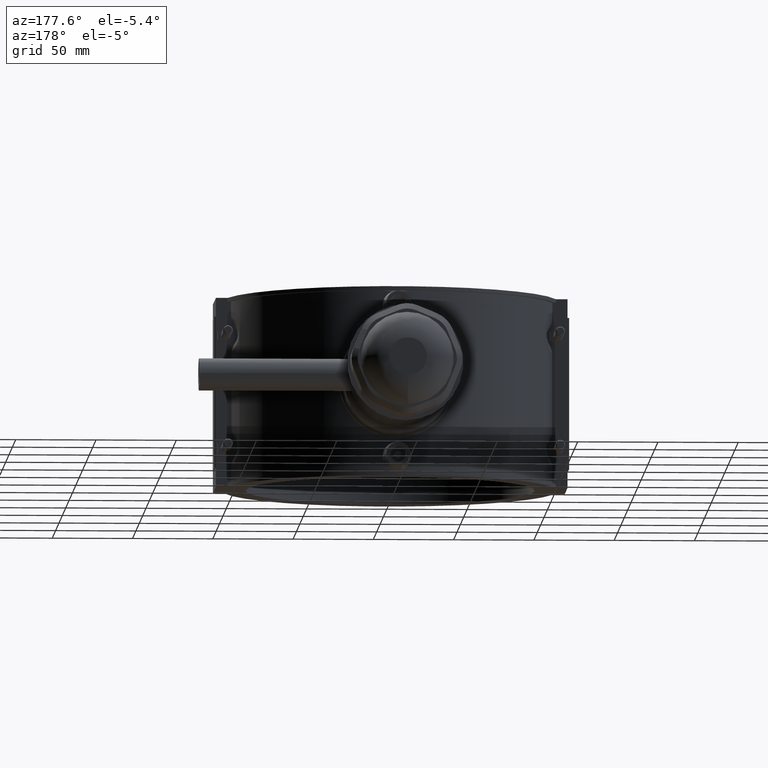
[diagram: clean part render]
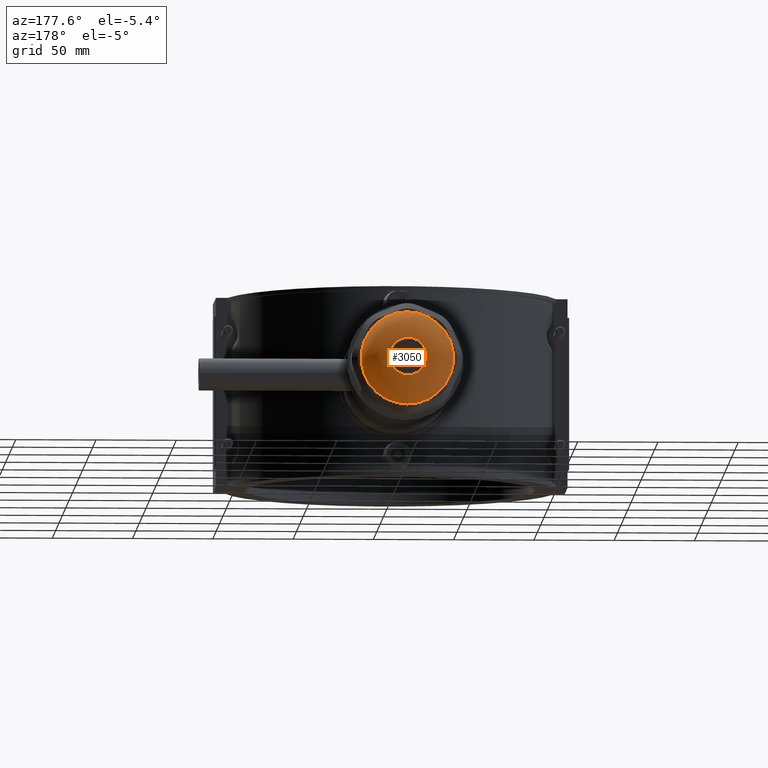
[diagram: same view with one face highlighted and labeled with its STEP entity id]
A machine part, auxiliary view. The second image highlights one B-rep face of the part: STEP entity #3050.
In plain terms, the highlighted face is a freeform B-spline surface patch.
Its self-contained STEP definition (entity closure, byte-faithful):
#24=(
BOUNDED_CURVE()
B_SPLINE_CURVE(2,(#4728,#4729,#4730),.UNSPECIFIED.,.F.,.F.)
B_SPLINE_CURVE_WITH_KNOTS((3,3),(-1.5707963267949,-0.316946561442329),
 .UNSPECIFIED.)
CURVE()
GEOMETRIC_REPRESENTATION_ITEM()
RATIONAL_B_SPLINE_CURVE((1.,0.809835374217087,1.))
REPRESENTATION_ITEM('')
);
#25=(
BOUNDED_SURFACE()
B_SPLINE_SURFACE(2,2,((#4699,#4700,#4701,#4702,#4703,#4704,#4705,#4706,
#4707),(#4708,#4709,#4710,#4711,#4712,#4713,#4714,#4715,#4716),(#4717,#4718,
#4719,#4720,#4721,#4722,#4723,#4724,#4725)),.UNSPECIFIED.,.F.,.T.,.F.)
B_SPLINE_SURFACE_WITH_KNOTS((3,3),(3,2,2,2,3),(0.316946561442329,1.5707963267949),
(-3.14159265358979,-1.5707963267949,0.,1.5707963267949,3.14159265358979),
 .UNSPECIFIED.)
GEOMETRIC_REPRESENTATION_ITEM()
RATIONAL_B_SPLINE_SURFACE(((1.,0.707106781186548,1.,0.707106781186548,1.,
0.707106781186548,1.,0.707106781186548,1.),(0.809835374217087,0.572640084753647,
0.809835374217087,0.572640084753647,0.809835374217087,0.572640084753647,
0.809835374217087,0.572640084753647,0.809835374217087),(1.,0.707106781186548,
1.,0.707106781186548,1.,0.707106781186548,1.,0.707106781186548,1.)))
REPRESENTATION_ITEM('')
SURFACE()
);
#785=FACE_OUTER_BOUND('',#977,.T.);
#977=EDGE_LOOP('',(#2142,#2143,#2144,#2145));
#1200=CIRCLE('',#3259,28.8);
#1202=CIRCLE('',#3262,11.6965529790045);
#1333=VERTEX_POINT('',#4694);
#1335=VERTEX_POINT('',#4726);
#1651=EDGE_CURVE('',#1333,#1333,#1200,.T.);
#1653=EDGE_CURVE('',#1335,#1335,#1202,.T.);
#1654=EDGE_CURVE('',#1335,#1333,#24,.T.);
#2142=ORIENTED_EDGE('',*,*,#1653,.T.);
#2143=ORIENTED_EDGE('',*,*,#1654,.T.);
#2144=ORIENTED_EDGE('',*,*,#1651,.T.);
#2145=ORIENTED_EDGE('',*,*,#1654,.F.);
#3050=ADVANCED_FACE('',(#785),#25,.T.);
#3259=AXIS2_PLACEMENT_3D('',#4695,#3646,#3647);
#3262=AXIS2_PLACEMENT_3D('',#4727,#3652,#3653);
#3646=DIRECTION('center_axis',(0.,1.,3.06161699786838E-16));
#3647=DIRECTION('ref_axis',(1.,0.,0.));
#3652=DIRECTION('center_axis',(0.,-1.,-3.06161699786838E-16));
#3653=DIRECTION('ref_axis',(-6.12323399573677E-17,-3.79675286084037E-16,
1.));
#4694=CARTESIAN_POINT('',(5.29047417231657E-15,254.61,-28.8));
#4695=CARTESIAN_POINT('Origin',(0.,254.61,5.03972774019115E-14));
#4699=CARTESIAN_POINT('Ctrl Pts',(1.76349139077219E-15,254.61,-28.8));
#4700=CARTESIAN_POINT('Ctrl Pts',(28.8,254.61,-28.7999999999999));
#4701=CARTESIAN_POINT('Ctrl Pts',(28.8,254.61,5.21607687926836E-14));
#4702=CARTESIAN_POINT('Ctrl Pts',(28.8,254.61,28.8000000000001));
#4703=CARTESIAN_POINT('Ctrl Pts',(-1.76349139077219E-15,254.61,28.8000000000001));
#4704=CARTESIAN_POINT('Ctrl Pts',(-28.8,254.61,28.8));
#4705=CARTESIAN_POINT('Ctrl Pts',(-28.8,254.61,4.86337860111393E-14));
#4706=CARTESIAN_POINT('Ctrl Pts',(-28.8,254.61,-28.8));
#4707=CARTESIAN_POINT('Ctrl Pts',(1.76349139077219E-15,254.61,-28.8));
#4708=CARTESIAN_POINT('Ctrl Pts',(1.51464498236703E-15,267.,-24.7360297421522));
#4709=CARTESIAN_POINT('Ctrl Pts',(24.7360297421523,267.,-24.7360297421522));
#4710=CARTESIAN_POINT('Ctrl Pts',(24.7360297421523,267.,5.57052658446374E-14));
#4711=CARTESIAN_POINT('Ctrl Pts',(24.7360297421523,267.,24.7360297421523));
#4712=CARTESIAN_POINT('Ctrl Pts',(-1.51464498236703E-15,267.,24.7360297421523));
#4713=CARTESIAN_POINT('Ctrl Pts',(-24.7360297421523,267.,24.7360297421523));
#4714=CARTESIAN_POINT('Ctrl Pts',(-24.7360297421523,267.,5.26759758799034E-14));
#4715=CARTESIAN_POINT('Ctrl Pts',(-24.7360297421523,267.,-24.7360297421522));
#4716=CARTESIAN_POINT('Ctrl Pts',(1.51464498236703E-15,267.,-24.7360297421522));
#4717=CARTESIAN_POINT('Ctrl Pts',(7.16207308339765E-16,267.,-11.6965529790044));
#4718=CARTESIAN_POINT('Ctrl Pts',(11.6965529790045,267.,-11.6965529790044));
#4719=CARTESIAN_POINT('Ctrl Pts',(11.6965529790045,267.,5.49068281706101E-14));
#4720=CARTESIAN_POINT('Ctrl Pts',(11.6965529790045,267.,11.6965529790045));
#4721=CARTESIAN_POINT('Ctrl Pts',(-7.16207308339765E-16,267.,11.6965529790045));
#4722=CARTESIAN_POINT('Ctrl Pts',(-11.6965529790045,267.,11.6965529790045));
#4723=CARTESIAN_POINT('Ctrl Pts',(-11.6965529790045,267.,5.34744135539306E-14));
#4724=CARTESIAN_POINT('Ctrl Pts',(-11.6965529790045,267.,-11.6965529790044));
#4725=CARTESIAN_POINT('Ctrl Pts',(7.16207308339765E-16,267.,-11.6965529790044));
#4726=CARTESIAN_POINT('',(2.1486219250193E-15,267.,-11.6965529790044));
#4727=CARTESIAN_POINT('Origin',(0.,267.,5.41906208622704E-14));
#4728=CARTESIAN_POINT('Ctrl Pts',(7.16207308339765E-16,267.,-11.6965529790044));
#4729=CARTESIAN_POINT('Ctrl Pts',(1.51464498236703E-15,267.,-24.7360297421522));
#4730=CARTESIAN_POINT('Ctrl Pts',(1.76349139077219E-15,254.61,-28.8));